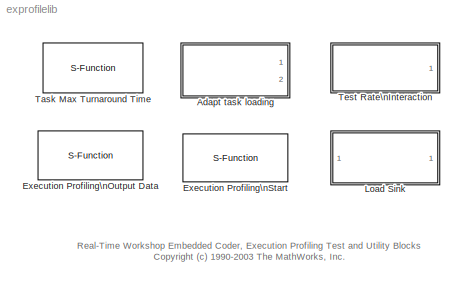
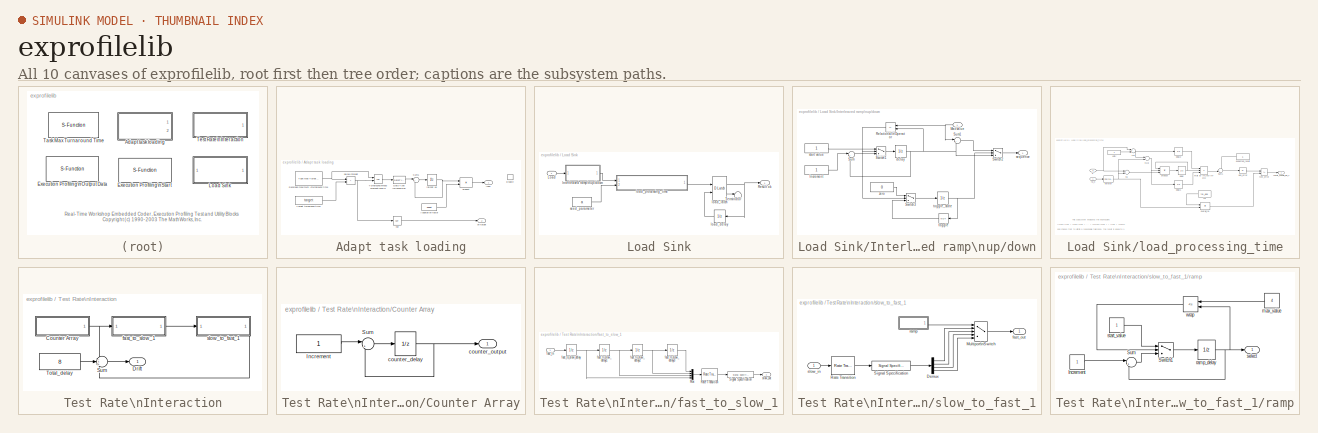
[diagram: thumbnail index - all 10 canvases of the model, root first then tree order]
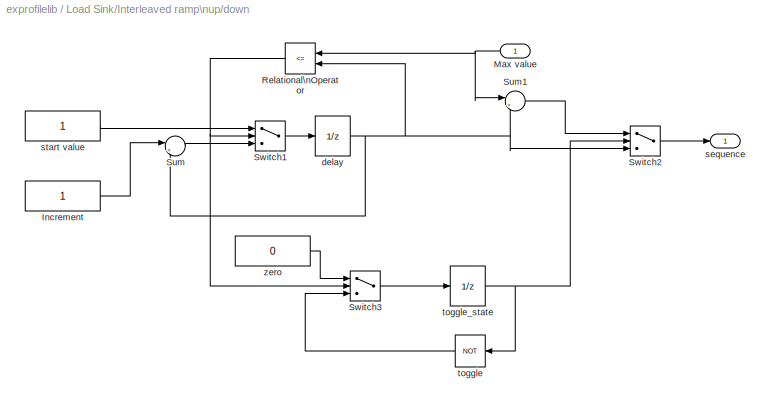
MODEL exprofilelib
KIND library
BLOCK [SubSystem] Adapt task loading
  MaskCallbackString = |||
  MaskDescription = Increase the load demand until the task turnaround time reaches the target. The load demand ratchets up at a rate inversely proportional to the adaptation factor.
  MaskDisplay = disp(sprintf(['Target = %d'], double(target)))
  MaskEnableString = on,on,on,on
  MaskIconFrame = on
  MaskIconOpaque = on
  MaskIconRotate = none
  MaskIconUnits = autoscale
  MaskPromptString = Rate number:|Target turnaround time in free running timer ticks:|Adaptation factor:|Sample time:
  MaskStyleString = edit,edit,edit,edit
  MaskTabNameString = ,,,
  MaskToolTipString = on,on,on,on
  MaskTunableValueString = off,off,off,off
  MaskType = Adapt task loading
  MaskValueString = 0|uint32(1000)|64|T
  MaskVarAliasString = ,,,
  MaskVariables = rateNum=@1;target=@2;adapt=@3;t=@4;
  MaskVisibilityString = on,on,on,on
  MinAlgLoopOccurrences = off
  Ports = [0, 2, 1]
  PropExecContextAcrossSSBoundary = on
  RTWSystemCode = Auto
  TreatAsAtomicUnit = off
BLOCK [Constant] Adapt task loading/Adaptation factor
  OutDataTypeMode = Inherit via back propagation
  Value = adapt
BLOCK [DataTypeConversion] Adapt task loading/Data Type \nConversion
  OutDataTypeMode = int16
BLOCK [EnablePort] Adapt task loading/Enable
  Ports = []
BLOCK [Reference] Adapt task loading/Recorded maximum \nturnaround time  REF=exprofilelib/Task Max Turnaround Time  (lib defined in mdl_8b2df03260bc)
  Ports = [0, 1]
  SourceBlock = exprofilelib/Task Max Turnaround Time
  SourceType = Task Maximum Turnaround Time
  rateNumber = rateNum
  t = t
BLOCK [Sum] Adapt task loading/Sum1
  IconShape = round
  InputSameDT = off
  Inputs = |++
  OutDataTypeMode = Inherit via internal rule
  Ports = [2, 1]
  SaturateOnIntegerOverflow = off
BLOCK [Constant] Adapt task loading/Target turnaround time
  Value = target
BLOCK [Logic] Adapt task loading/Turnaround\nmeasurement\nvalid
  AllPortsSameDT = off
  OutDataTypeMode = Specify via dialog
  Ports = [2, 1]
BLOCK [RelationalOperator] Adapt task loading/below\ntarget
  InputSameDT = off
  Operator = <
BLOCK [Outport] Adapt task loading/load
  BusOutputAsStruct = off
  IconDisplay = Port number
BLOCK [Logic] Adapt task loading/not
  AllPortsSameDT = off
  Operator = NOT
  OutDataTypeMode = Specify via dialog
  Ports = [1, 1]
BLOCK [Outport] Adapt task loading/on target
  BusOutputAsStruct = off
  IconDisplay = Port number
  Port = 2
BLOCK [Product] Adapt task loading/product
  InputSameDT = off
  Inputs = */
  Ports = [2, 1]
  RndMeth = Floor
  SaturateOnIntegerOverflow = off
BLOCK [UnitDelay] Adapt task loading/ratchet up
  SampleTime = -1
BLOCK [S-Function] Execution Profiling\nOutput Data
  FunctionName = profiling_control
  MaskDescription = Outputs logged exectution profiling data. The data is output 8 bytes at a time; the active output is set to true while logged data is output.
  MaskDisplay = port_label('output',1,'Data active')\nport_label('output',2,'Data')
  MaskEnableString = on
  MaskIconFrame = on
  MaskIconOpaque = on
  MaskIconRotate = none
  MaskIconUnits = normalized
  MaskInitialization = mode = 2; % data output
  MaskPromptString = Sample time
  MaskSelfModifiable = on
  MaskStyleString = edit
  MaskToolTipString = on
  MaskTunableValueString = on
  MaskType = Output execution profiling data
  MaskValueString = 1
  MaskVariables = t=@1;
  MaskVisibilityString = on
  Parameters = mode, t
  Ports = [0, 2]
BLOCK [S-Function] Execution Profiling\nStart
  FunctionName = profiling_control
  MaskDescription = Initiates logging of execution profiling data; this block should typically be placed inside a triggered sub-system.
  MaskDisplay = disp(sprintf('Start\\nExecution Profiling'))
  MaskIconFrame = on
  MaskIconOpaque = on
  MaskIconRotate = none
  MaskIconUnits = normalized
  MaskInitialization = mode = 1; % control input\nt = -1; % sample time
  MaskSelfModifiable = on
  MaskType = Start Execution Profiling
  Parameters = mode, t
  Ports = []
BLOCK [SubSystem] Load Sink
  MaskCallbackString = |
  MaskDescription = This block consumes processor time by performing integer or floating point calculations. The larger the value of the load input, the more processor time is consumed.
  MaskEnableString = on,on
  MaskIconFrame = on
  MaskIconOpaque = on
  MaskIconRotate = none
  MaskIconUnits = autoscale
  MaskInitialization = if strcmp(mode,'int16')\n	tol_eps = int32(0);\n	a = int32(0);\nelseif strcmp(mode,'single')\n    tol_eps = single(1.192e-7);\n	a = single(3.1415926);\nelse\n	error(['Unrecognized value for mode'])\nend
  MaskPromptString = Mode:|Sample time:
  MaskStyleString = popup(int16|single),edit
  MaskTabNameString = ,
  MaskToolTipString = on,on
  MaskTunableValueString = off,off
  MaskType = Load Sink
  MaskValueString = single|1
  MaskVarAliasString = ,
  MaskVariables = mode=&1;t=@2;
  MaskVisibilityString = on,on
  MinAlgLoopOccurrences = off
  Ports = [1, 1]
  PropExecContextAcrossSSBoundary = on
  RTWSystemCode = Auto
  TreatAsAtomicUnit = off
BLOCK [SubSystem] Load Sink/Interleaved ramp\nup//down
  MaskEnableString = on
  MaskIconFrame = on
  MaskIconOpaque = on
  MaskIconRotate = none
  MaskIconUnits = autoscale
  MaskPromptString = Sample time:
  MaskStyleString = edit
  MaskToolTipString = on
  MaskTunableValueString = on
  MaskType = Interleaved ramp up/down
  MaskValueString = t
  MaskVariables = t=@1;
  MaskVisibilityString = on
  MinAlgLoopOccurrences = off
  Ports = [1, 1]
  PropExecContextAcrossSSBoundary = on
  RTWSystemCode = Auto
  TreatAsAtomicUnit = off
BLOCK [Constant] Load Sink/Interleaved ramp\nup//down/Increment
  OutDataTypeMode = Inherit via back propagation
BLOCK [Inport] Load Sink/Interleaved ramp\nup//down/Max value
  IconDisplay = Port number
  LatchInput = off
  Port = 1
BLOCK [RelationalOperator] Load Sink/Interleaved ramp\nup//down/Relational\nOperator
  InputSameDT = off
  Operator = <=
BLOCK [Sum] Load Sink/Interleaved ramp\nup//down/Sum
  IconShape = round
  InputSameDT = off
  Inputs = |++
  OutDataTypeMode = Inherit via internal rule
  Ports = [2, 1]
  SaturateOnIntegerOverflow = off
BLOCK [Sum] Load Sink/Interleaved ramp\nup//down/Sum1
  IconShape = round
  InputSameDT = off
  Inputs = |+-
  OutDataTypeMode = Inherit via internal rule
  Ports = [2, 1]
  SaturateOnIntegerOverflow = off
BLOCK [Switch] Load Sink/Interleaved ramp\nup//down/Switch1
  Criteria = u2 ~= 0
  InputSameDT = off
BLOCK [Switch] Load Sink/Interleaved ramp\nup//down/Switch2
  Criteria = u2 ~= 0
  InputSameDT = off
BLOCK [Switch] Load Sink/Interleaved ramp\nup//down/Switch3
  Criteria = u2 ~= 0
  InputSameDT = off
BLOCK [UnitDelay] Load Sink/Interleaved ramp\nup//down/delay
  SampleTime = t
  X0 = 1
BLOCK [Outport] Load Sink/Interleaved ramp\nup//down/sequence
  BusOutputAsStruct = off
  IconDisplay = Port number
BLOCK [Constant] Load Sink/Interleaved ramp\nup//down/start value
  OutDataTypeMode = Inherit via back propagation
BLOCK [Logic] Load Sink/Interleaved ramp\nup//down/toggle
  AllPortsSameDT = off
  Operator = NOT
  Ports = [1, 1]
BLOCK [UnitDelay] Load Sink/Interleaved ramp\nup//down/toggle_state
  SampleTime = t
BLOCK [Constant] Load Sink/Interleaved ramp\nup//down/zero
  OutDataTypeMode = Inherit via back propagation
  Value = 0
BLOCK [Inport] Load Sink/Load
  IconDisplay = Port number
  LatchInput = off
  Port = 1
BLOCK [Outport] Load Sink/Result ok
  BusOutputAsStruct = off
  IconDisplay = Port number
BLOCK [Terminator] Load Sink/Terminator
BLOCK [UnitDelay] Load Sink/load_delay
  SampleTime = t
  X0 = 1
BLOCK [Reference] Load Sink/load_latch  REF=simulink_extras/Flip Flops/D Latch
  Ports = [2, 2]
  ShowPortLabels = on
  SourceBlock = simulink_extras/Flip Flops/D Latch
  SourceType = DLatch
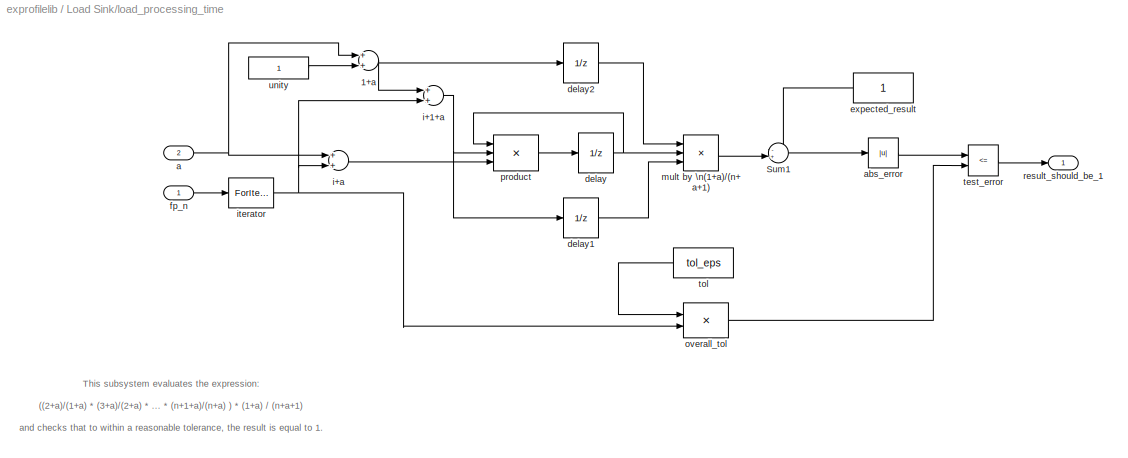
BLOCK [SubSystem] Load Sink/load_processing_time
  MinAlgLoopOccurrences = off
  Ports = [2, 1]
  PropExecContextAcrossSSBoundary = on
  RTWSystemCode = Auto
  TreatAsAtomicUnit = off
BLOCK [Sum] Load Sink/load_processing_time/1+a
  InputSameDT = off
  Ports = [2, 1]
  SaturateOnIntegerOverflow = off
BLOCK [Sum] Load Sink/load_processing_time/Sum1
  IconShape = round
  InputSameDT = off
  Inputs = -+|
  OutDataTypeMode = Inherit via internal rule
  Ports = [2, 1]
  SaturateOnIntegerOverflow = off
BLOCK [Inport] Load Sink/load_processing_time/a
  IconDisplay = Port number
  LatchInput = off
  Port = 2
BLOCK [Abs] Load Sink/load_processing_time/abs_error
BLOCK [UnitDelay] Load Sink/load_processing_time/delay
  SampleTime = -1
  X0 = 1
BLOCK [UnitDelay] Load Sink/load_processing_time/delay1
  SampleTime = -1
  X0 = 1
BLOCK [UnitDelay] Load Sink/load_processing_time/delay2
  SampleTime = -1
  X0 = 1
BLOCK [Constant] Load Sink/load_processing_time/expected_result
  OutDataTypeMode = Inherit via back propagation
BLOCK [Inport] Load Sink/load_processing_time/fp_n
  IconDisplay = Port number
  LatchInput = off
  Port = 1
BLOCK [Sum] Load Sink/load_processing_time/i+1+a
  InputSameDT = off
  Ports = [2, 1]
  SaturateOnIntegerOverflow = off
BLOCK [Sum] Load Sink/load_processing_time/i+a
  InputSameDT = off
  Ports = [2, 1]
  SaturateOnIntegerOverflow = off
BLOCK [ForIterator] Load Sink/load_processing_time/iterator
  IterationSource = external
  Ports = [1, 1]
  ResetStates = reset
BLOCK [Product] Load Sink/load_processing_time/mult by \n(1+a)//(n+a+1)
  InputSameDT = off
  Inputs = **/
  Ports = [3, 1]
  RndMeth = Floor
  SaturateOnIntegerOverflow = off
BLOCK [Product] Load Sink/load_processing_time/overall_tol
  InputSameDT = off
  OutDataTypeMode = Inherit via back propagation
  Ports = [2, 1]
  RndMeth = Floor
  SaturateOnIntegerOverflow = off
BLOCK [Product] Load Sink/load_processing_time/product
  InputSameDT = off
  Inputs = **/
  Ports = [3, 1]
  RndMeth = Floor
  SaturateOnIntegerOverflow = off
BLOCK [Outport] Load Sink/load_processing_time/result_should_be_1
  BusOutputAsStruct = off
  IconDisplay = Port number
BLOCK [RelationalOperator] Load Sink/load_processing_time/test_error
  InputSameDT = off
  Operator = <=
BLOCK [Constant] Load Sink/load_processing_time/tol
  Value = tol_eps
BLOCK [Constant] Load Sink/load_processing_time/unity
  OutDataTypeMode = Inherit via back propagation
BLOCK [Constant] Load Sink/seed_parameter
  Value = a
BLOCK [S-Function] Task Max Turnaround Time
  FunctionName = exprofile_turnaround
  MaskCallbackString = |
  MaskDescription = Outputs the maximum logged turnaround time, in free running timer ticks, for a model timer-based task. A free running timer must have been configured for use with the execution profiling engine. If execution profiling is not enabled, the output is zero.\n\nFor a model running in multi-tasking mode, the rate number must be in the range 0 to (N-1) where 0 represents the base rate and N is the total ...<+111ch>
  MaskDisplay = disp(sprintf('Task maximum\\nturnaround time'))
  MaskEnableString = on,on
  MaskIconFrame = on
  MaskIconOpaque = on
  MaskIconRotate = none
  MaskIconUnits = autoscale
  MaskPromptString = Rate number:|Sample time:
  MaskStyleString = edit,edit
  MaskTabNameString = ,
  MaskToolTipString = on,on
  MaskTunableValueString = off,off
  MaskType = Task Maximum Turnaround Time
  MaskValueString = 0|T*16
  MaskVarAliasString = ,
  MaskVariables = rateNumber=@1;t=@2;
  MaskVisibilityString = on,on
  Parameters = rateNumber, t
  Ports = [0, 1]
BLOCK [SubSystem] Test Rate\nInteraction
  MaskDescription = This block contains two tasks, one with the faster sample time, the other running four times slower.\n\nData is transferred continually between the two tasks and tested for consistency. In simulation, the drift output will always be zero. When executing in real-time, the drift output will always be non-zero provided that no sub-rate overruns occur. If sub-rate overruns do occur then data transfer ...<+69ch>
  MaskDisplay = disp(sprintf('Test rate\\n interaction'))
  MaskEnableString = on
  MaskIconFrame = on
  MaskIconOpaque = on
  MaskIconRotate = none
  MaskIconUnits = autoscale
  MaskPromptString = Faster sample time:
  MaskStyleString = edit
  MaskToolTipString = on
  MaskTunableValueString = off
  MaskType = Test Rate Interaction
  MaskValueString = T
  MaskVariables = t=@1;
  MaskVisibilityString = on
  MinAlgLoopOccurrences = off
  Ports = [0, 1]
  PropExecContextAcrossSSBoundary = on
  RTWSystemCode = Auto
  TreatAsAtomicUnit = off
BLOCK [SubSystem] Test Rate\nInteraction/Counter Array
  MinAlgLoopOccurrences = off
  Ports = [0, 1]
  PropExecContextAcrossSSBoundary = on
  RTWSystemCode = Auto
  TreatAsAtomicUnit = off
BLOCK [Constant] Test Rate\nInteraction/Counter Array/Increment
  OutDataTypeMode = uint8
BLOCK [Sum] Test Rate\nInteraction/Counter Array/Sum
  IconShape = round
  InputSameDT = off
  Inputs = |++
  OutDataTypeMode = Inherit via internal rule
  Ports = [2, 1]
  SaturateOnIntegerOverflow = off
BLOCK [UnitDelay] Test Rate\nInteraction/Counter Array/counter_delay
  SampleTime = t
BLOCK [Outport] Test Rate\nInteraction/Counter Array/counter_output
  BusOutputAsStruct = off
  IconDisplay = Port number
BLOCK [Outport] Test Rate\nInteraction/Drift
  BusOutputAsStruct = off
  IconDisplay = Port number
BLOCK [Sum] Test Rate\nInteraction/Sum
  IconShape = round
  InputSameDT = off
  Inputs = -++
  OutDataTypeMode = Inherit via internal rule
  Ports = [3, 1]
  SaturateOnIntegerOverflow = off
BLOCK [Constant] Test Rate\nInteraction/Total_delay
  OutDataTypeMode = Inherit via back propagation
  Value = 8
BLOCK [SubSystem] Test Rate\nInteraction/fast_to_slow_1
  MinAlgLoopOccurrences = off
  Ports = [1, 1]
  PropExecContextAcrossSSBoundary = on
  RTWSystemCode = Auto
  TreatAsAtomicUnit = off
BLOCK [Mux] Test Rate\nInteraction/fast_to_slow_1/Mux
  DisplayOption = bar
  Ports = [4, 1]
BLOCK [Reference] Test Rate\nInteraction/fast_to_slow_1/Rate Transition  REF=simulink/Signal\nAttributes/Rate Transition
  DataIntegrity = on
  DeterministicTransfer = on
  InitCond = 0
  Ports = [1, 1]
  SourceBlock = simulink/Signal\nAttributes/Rate Transition
  SourceType = Rate_Transition
  TransitionType = Fast to slow
BLOCK [Reference] Test Rate\nInteraction/fast_to_slow_1/Signal Specification  REF=simulink/Signal\nAttributes/Signal Specification
  D = -1
  DataType = auto
  OutDataType = sfix(16)
  OutScaling = 2^0
  Ports = [1, 1]
  SamplingMode = auto
  SignalType = auto
  SourceBlock = simulink/Signal\nAttributes/Signal Specification
  SourceType = Signal Specification
  Ts = 4*t
BLOCK [Inport] Test Rate\nInteraction/fast_to_slow_1/fast_in
  IconDisplay = Port number
  LatchInput = off
  Port = 1
BLOCK [UnitDelay] Test Rate\nInteraction/fast_to_slow_1/fast_to_slow_delay
  SampleTime = t
  X0 = 2^8 - 1
BLOCK [UnitDelay] Test Rate\nInteraction/fast_to_slow_1/fast_to_slow_delay1
  SampleTime = t
  X0 = 2^8 - 2
BLOCK [UnitDelay] Test Rate\nInteraction/fast_to_slow_1/fast_to_slow_delay2
  SampleTime = t
  X0 = 2^8 - 3
BLOCK [UnitDelay] Test Rate\nInteraction/fast_to_slow_1/fast_to_slow_delay3
  SampleTime = t
  X0 = 2^8 - 4
BLOCK [Outport] Test Rate\nInteraction/fast_to_slow_1/slow_out
  BusOutputAsStruct = off
  IconDisplay = Port number
BLOCK [SubSystem] Test Rate\nInteraction/slow_to_fast_1
  MinAlgLoopOccurrences = off
  Ports = [1, 1]
  PropExecContextAcrossSSBoundary = on
  RTWSystemCode = Auto
  TreatAsAtomicUnit = off
BLOCK [Demux] Test Rate\nInteraction/slow_to_fast_1/Demux
  Ports = [1, 4]
BLOCK [MultiPortSwitch] Test Rate\nInteraction/slow_to_fast_1/Multiport\nSwitch
  InputSameDT = off
  Ports = [5, 1]
BLOCK [Reference] Test Rate\nInteraction/slow_to_fast_1/Rate Transition  REF=simulink/Signal\nAttributes/Rate Transition
  DataIntegrity = on
  DeterministicTransfer = on
  InitCond = [2^8*ones(1,4) - [8 7 6 5] ]
  Ports = [1, 1]
  SourceBlock = simulink/Signal\nAttributes/Rate Transition
  SourceType = Rate_Transition
  TransitionType = Slow to fast
BLOCK [Reference] Test Rate\nInteraction/slow_to_fast_1/Signal Specification  REF=simulink/Signal\nAttributes/Signal Specification
  D = -1
  DataType = auto
  OutDataType = sfix(16)
  OutScaling = 2^0
  Ports = [1, 1]
  SamplingMode = auto
  SignalType = auto
  SourceBlock = simulink/Signal\nAttributes/Signal Specification
  SourceType = Signal Specification
  Ts = t
BLOCK [Outport] Test Rate\nInteraction/slow_to_fast_1/fast_out
  BusOutputAsStruct = off
  IconDisplay = Port number
BLOCK [SubSystem] Test Rate\nInteraction/slow_to_fast_1/ramp
  MinAlgLoopOccurrences = off
  Ports = [0, 1]
  PropExecContextAcrossSSBoundary = on
  RTWSystemCode = Auto
  TreatAsAtomicUnit = off
BLOCK [Constant] Test Rate\nInteraction/slow_to_fast_1/ramp/Increment
  OutDataTypeMode = uint8
BLOCK [Sum] Test Rate\nInteraction/slow_to_fast_1/ramp/Sum
  IconShape = round
  InputSameDT = off
  Inputs = |++
  OutDataTypeMode = Inherit via internal rule
  Ports = [2, 1]
BLOCK [Switch] Test Rate\nInteraction/slow_to_fast_1/ramp/Switch1
  Criteria = u2 ~= 0
  InputSameDT = off
BLOCK [Constant] Test Rate\nInteraction/slow_to_fast_1/ramp/max_value
  OutDataTypeMode = uint8
  Value = 4
BLOCK [UnitDelay] Test Rate\nInteraction/slow_to_fast_1/ramp/ramp_delay
  SampleTime = t
  X0 = 1
BLOCK [Outport] Test Rate\nInteraction/slow_to_fast_1/ramp/select
  BusOutputAsStruct = off
  IconDisplay = Port number
BLOCK [Constant] Test Rate\nInteraction/slow_to_fast_1/ramp/start_value
  OutDataTypeMode = uint8
BLOCK [RelationalOperator] Test Rate\nInteraction/slow_to_fast_1/ramp/wrap
  InputSameDT = off
  Operator = <=
BLOCK [Inport] Test Rate\nInteraction/slow_to_fast_1/slow_in
  IconDisplay = Port number
  LatchInput = off
  Port = 1
ANNOTATION (root): Real-Time Workshop Embedded Coder, Execution Profiling Test and Utility Blocks\nCopyright (c) 1990-2003 The MathWorks, Inc.
ANNOTATION Load Sink/load_processing_time: This subsystem evaluates the expression:\n\n((2+a)/(1+a) * (3+a)/(2+a) * ... * (n+1+a)/(n+a) ) * (1+a) / (n+a+1)\n\nand checks that to within a reasonable tolerance, the result is equal to 1. \n\nThe processing time consumed increases with the the input n. To test floating\npoint, select a floating point value for a; to test integer set a = int32(0).
LINE Adapt task loading/Adaptation factor:1 -> Adapt task loading/product:2
LINE Adapt task loading/Data Type \nConversion:1 -> Adapt task loading/Sum1:1
NET Adapt task loading/Recorded maximum \nturnaround time:1 -> Adapt task loading/Turnaround\nmeasurement\nvalid:1, Adapt task loading/below\ntarget:1
LINE Adapt task loading/Sum1:1 -> Adapt task loading/ratchet up:1
LINE Adapt task loading/Target turnaround time:1 -> Adapt task loading/below\ntarget:2
LINE Adapt task loading/Turnaround\nmeasurement\nvalid:1 -> Adapt task loading/Data Type \nConversion:1
NET Adapt task loading/below\ntarget:1 -> Adapt task loading/Turnaround\nmeasurement\nvalid:2, Adapt task loading/not:1
LINE Adapt task loading/not:1 -> Adapt task loading/on target:1
LINE Adapt task loading/product:1 -> Adapt task loading/load:1
NET Adapt task loading/ratchet up:1 -> Adapt task loading/Sum1:2, Adapt task loading/product:1
LINE Load Sink/Interleaved ramp\nup//down/Increment:1 -> Load Sink/Interleaved ramp\nup//down/Sum:1
NET Load Sink/Interleaved ramp\nup//down/Max value:1 -> Load Sink/Interleaved ramp\nup//down/Relational\nOperator:1, Load Sink/Interleaved ramp\nup//down/Sum1:1
NET Load Sink/Interleaved ramp\nup//down/Relational\nOperator:1 -> Load Sink/Interleaved ramp\nup//down/Switch1:2, Load Sink/Interleaved ramp\nup//down/Switch3:2
LINE Load Sink/Interleaved ramp\nup//down/Sum1:1 -> Load Sink/Interleaved ramp\nup//down/Switch2:1
LINE Load Sink/Interleaved ramp\nup//down/Sum:1 -> Load Sink/Interleaved ramp\nup//down/Switch1:3
LINE Load Sink/Interleaved ramp\nup//down/Switch1:1 -> Load Sink/Interleaved ramp\nup//down/delay:1
LINE Load Sink/Interleaved ramp\nup//down/Switch2:1 -> Load Sink/Interleaved ramp\nup//down/sequence:1
LINE Load Sink/Interleaved ramp\nup//down/Switch3:1 -> Load Sink/Interleaved ramp\nup//down/toggle_state:1
NET Load Sink/Interleaved ramp\nup//down/delay:1 -> Load Sink/Interleaved ramp\nup//down/Relational\nOperator:2, Load Sink/Interleaved ramp\nup//down/Sum1:2, Load Sink/Interleaved ramp\nup//down/Sum:2, Load Sink/Interleaved ramp\nup//down/Switch2:3
LINE Load Sink/Interleaved ramp\nup//down/start value:1 -> Load Sink/Interleaved ramp\nup//down/Switch1:1
LINE Load Sink/Interleaved ramp\nup//down/toggle:1 -> Load Sink/Interleaved ramp\nup//down/Switch3:3
NET Load Sink/Interleaved ramp\nup//down/toggle_state:1 -> Load Sink/Interleaved ramp\nup//down/Switch2:2, Load Sink/Interleaved ramp\nup//down/toggle:1
LINE Load Sink/Interleaved ramp\nup//down/zero:1 -> Load Sink/Interleaved ramp\nup//down/Switch3:1
LINE Load Sink/Interleaved ramp\nup//down:1 -> Load Sink/load_processing_time:1
LINE Load Sink/Load:1 -> Load Sink/Interleaved ramp\nup//down:1
LINE Load Sink/load_delay:1 -> Load Sink/load_latch:2
NET Load Sink/load_latch:1 -> Load Sink/Result ok:1, Load Sink/load_delay:1
LINE Load Sink/load_latch:2 -> Load Sink/Terminator:1
NET Load Sink/load_processing_time/1+a:1 -> Load Sink/load_processing_time/delay2:1, Load Sink/load_processing_time/i+1+a:1
LINE Load Sink/load_processing_time/Sum1:1 -> Load Sink/load_processing_time/abs_error:1
NET Load Sink/load_processing_time/a:1 -> Load Sink/load_processing_time/1+a:1, Load Sink/load_processing_time/i+a:1
LINE Load Sink/load_processing_time/abs_error:1 -> Load Sink/load_processing_time/test_error:1
LINE Load Sink/load_processing_time/delay1:1 -> Load Sink/load_processing_time/mult by \n(1+a)//(n+a+1):3
LINE Load Sink/load_processing_time/delay2:1 -> Load Sink/load_processing_time/mult by \n(1+a)//(n+a+1):1
NET Load Sink/load_processing_time/delay:1 -> Load Sink/load_processing_time/mult by \n(1+a)//(n+a+1):2, Load Sink/load_processing_time/product:1
LINE Load Sink/load_processing_time/expected_result:1 -> Load Sink/load_processing_time/Sum1:1
LINE Load Sink/load_processing_time/fp_n:1 -> Load Sink/load_processing_time/iterator:1
NET Load Sink/load_processing_time/i+1+a:1 -> Load Sink/load_processing_time/delay1:1, Load Sink/load_processing_time/product:2
LINE Load Sink/load_processing_time/i+a:1 -> Load Sink/load_processing_time/product:3
NET Load Sink/load_processing_time/iterator:1 -> Load Sink/load_processing_time/i+1+a:2, Load Sink/load_processing_time/i+a:2, Load Sink/load_processing_time/overall_tol:2
LINE Load Sink/load_processing_time/mult by \n(1+a)//(n+a+1):1 -> Load Sink/load_processing_time/Sum1:2
LINE Load Sink/load_processing_time/overall_tol:1 -> Load Sink/load_processing_time/test_error:2
LINE Load Sink/load_processing_time/product:1 -> Load Sink/load_processing_time/delay:1
LINE Load Sink/load_processing_time/test_error:1 -> Load Sink/load_processing_time/result_should_be_1:1
LINE Load Sink/load_processing_time/tol:1 -> Load Sink/load_processing_time/overall_tol:1
LINE Load Sink/load_processing_time/unity:1 -> Load Sink/load_processing_time/1+a:2
LINE Load Sink/load_processing_time:1 -> Load Sink/load_latch:1
LINE Load Sink/seed_parameter:1 -> Load Sink/load_processing_time:2
LINE Test Rate\nInteraction/Counter Array/Increment:1 -> Test Rate\nInteraction/Counter Array/Sum:1
LINE Test Rate\nInteraction/Counter Array/Sum:1 -> Test Rate\nInteraction/Counter Array/counter_delay:1
NET Test Rate\nInteraction/Counter Array/counter_delay:1 -> Test Rate\nInteraction/Counter Array/Sum:2, Test Rate\nInteraction/Counter Array/counter_output:1
NET Test Rate\nInteraction/Counter Array:1 -> Test Rate\nInteraction/Sum:1, Test Rate\nInteraction/fast_to_slow_1:1
LINE Test Rate\nInteraction/Sum:1 -> Test Rate\nInteraction/Drift:1
LINE Test Rate\nInteraction/Total_delay:1 -> Test Rate\nInteraction/Sum:2
LINE Test Rate\nInteraction/fast_to_slow_1/Mux:1 -> Test Rate\nInteraction/fast_to_slow_1/Rate Transition:1
LINE Test Rate\nInteraction/fast_to_slow_1/Rate Transition:1 -> Test Rate\nInteraction/fast_to_slow_1/Signal Specification:1
LINE Test Rate\nInteraction/fast_to_slow_1/Signal Specification:1 -> Test Rate\nInteraction/fast_to_slow_1/slow_out:1
LINE Test Rate\nInteraction/fast_to_slow_1/fast_in:1 -> Test Rate\nInteraction/fast_to_slow_1/fast_to_slow_delay:1
NET Test Rate\nInteraction/fast_to_slow_1/fast_to_slow_delay1:1 -> Test Rate\nInteraction/fast_to_slow_1/Mux:3, Test Rate\nInteraction/fast_to_slow_1/fast_to_slow_delay2:1
NET Test Rate\nInteraction/fast_to_slow_1/fast_to_slow_delay2:1 -> Test Rate\nInteraction/fast_to_slow_1/Mux:2, Test Rate\nInteraction/fast_to_slow_1/fast_to_slow_delay3:1
LINE Test Rate\nInteraction/fast_to_slow_1/fast_to_slow_delay3:1 -> Test Rate\nInteraction/fast_to_slow_1/Mux:1
NET Test Rate\nInteraction/fast_to_slow_1/fast_to_slow_delay:1 -> Test Rate\nInteraction/fast_to_slow_1/Mux:4, Test Rate\nInteraction/fast_to_slow_1/fast_to_slow_delay1:1
LINE Test Rate\nInteraction/fast_to_slow_1:1 -> Test Rate\nInteraction/slow_to_fast_1:1
LINE Test Rate\nInteraction/slow_to_fast_1/Demux:1 -> Test Rate\nInteraction/slow_to_fast_1/Multiport\nSwitch:2
LINE Test Rate\nInteraction/slow_to_fast_1/Demux:2 -> Test Rate\nInteraction/slow_to_fast_1/Multiport\nSwitch:3
LINE Test Rate\nInteraction/slow_to_fast_1/Demux:3 -> Test Rate\nInteraction/slow_to_fast_1/Multiport\nSwitch:4
LINE Test Rate\nInteraction/slow_to_fast_1/Demux:4 -> Test Rate\nInteraction/slow_to_fast_1/Multiport\nSwitch:5
LINE Test Rate\nInteraction/slow_to_fast_1/Multiport\nSwitch:1 -> Test Rate\nInteraction/slow_to_fast_1/fast_out:1
LINE Test Rate\nInteraction/slow_to_fast_1/Rate Transition:1 -> Test Rate\nInteraction/slow_to_fast_1/Signal Specification:1
LINE Test Rate\nInteraction/slow_to_fast_1/Signal Specification:1 -> Test Rate\nInteraction/slow_to_fast_1/Demux:1
LINE Test Rate\nInteraction/slow_to_fast_1/ramp/Increment:1 -> Test Rate\nInteraction/slow_to_fast_1/ramp/Sum:1
LINE Test Rate\nInteraction/slow_to_fast_1/ramp/Sum:1 -> Test Rate\nInteraction/slow_to_fast_1/ramp/Switch1:3
LINE Test Rate\nInteraction/slow_to_fast_1/ramp/Switch1:1 -> Test Rate\nInteraction/slow_to_fast_1/ramp/ramp_delay:1
LINE Test Rate\nInteraction/slow_to_fast_1/ramp/max_value:1 -> Test Rate\nInteraction/slow_to_fast_1/ramp/wrap:1
NET Test Rate\nInteraction/slow_to_fast_1/ramp/ramp_delay:1 -> Test Rate\nInteraction/slow_to_fast_1/ramp/Sum:2, Test Rate\nInteraction/slow_to_fast_1/ramp/select:1, Test Rate\nInteraction/slow_to_fast_1/ramp/wrap:2
LINE Test Rate\nInteraction/slow_to_fast_1/ramp/start_value:1 -> Test Rate\nInteraction/slow_to_fast_1/ramp/Switch1:1
LINE Test Rate\nInteraction/slow_to_fast_1/ramp/wrap:1 -> Test Rate\nInteraction/slow_to_fast_1/ramp/Switch1:2
LINE Test Rate\nInteraction/slow_to_fast_1/ramp:1 -> Test Rate\nInteraction/slow_to_fast_1/Multiport\nSwitch:1
LINE Test Rate\nInteraction/slow_to_fast_1/slow_in:1 -> Test Rate\nInteraction/slow_to_fast_1/Rate Transition:1
LINE Test Rate\nInteraction/slow_to_fast_1:1 -> Test Rate\nInteraction/Sum:3
note: NET lines group one-source signal fan-out (src -> all destinations, sorted); 1:1 wires keep LINE
